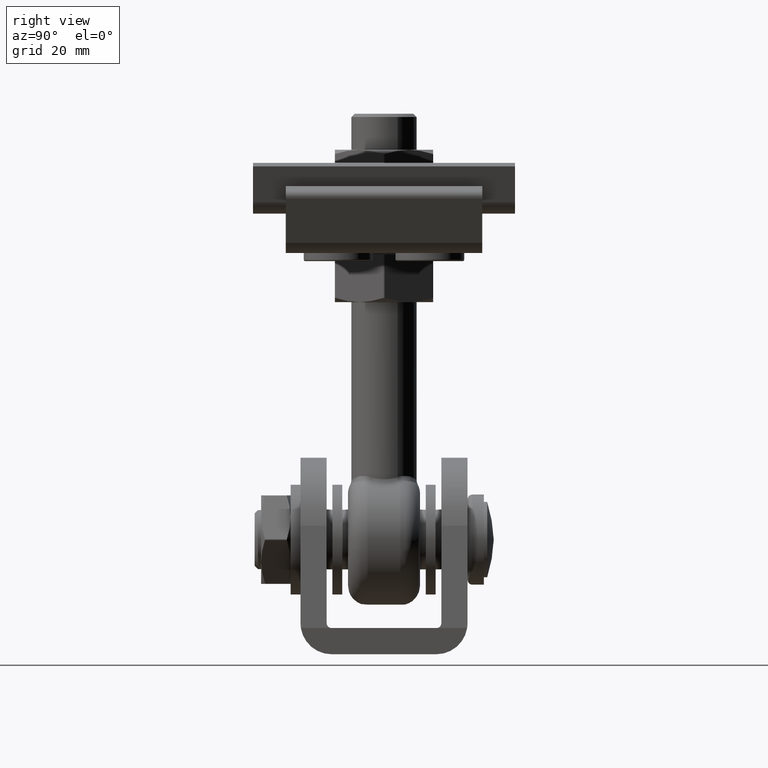
[diagram: clean part render]
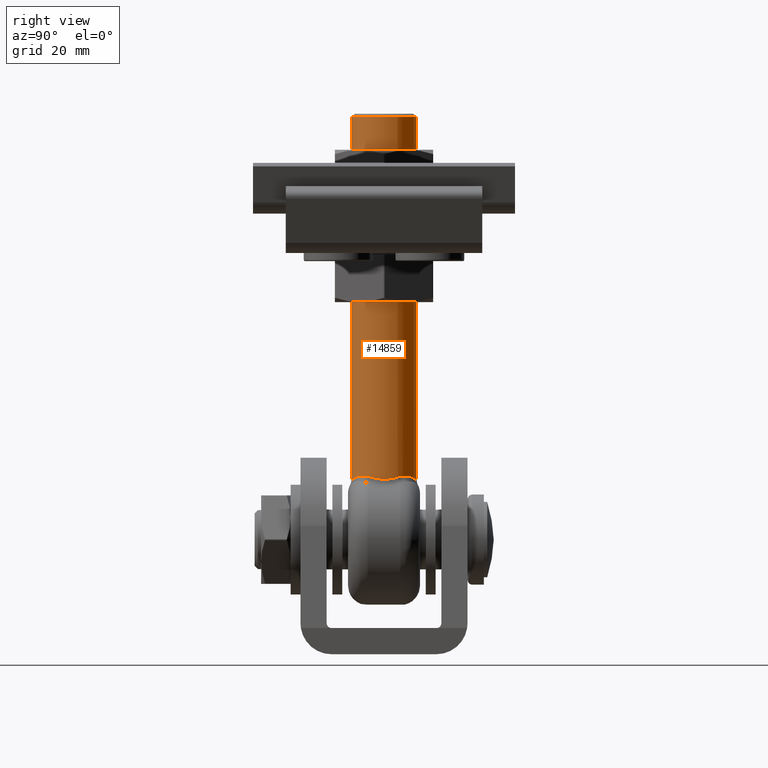
[diagram: same view with one face highlighted and labeled with its STEP entity id]
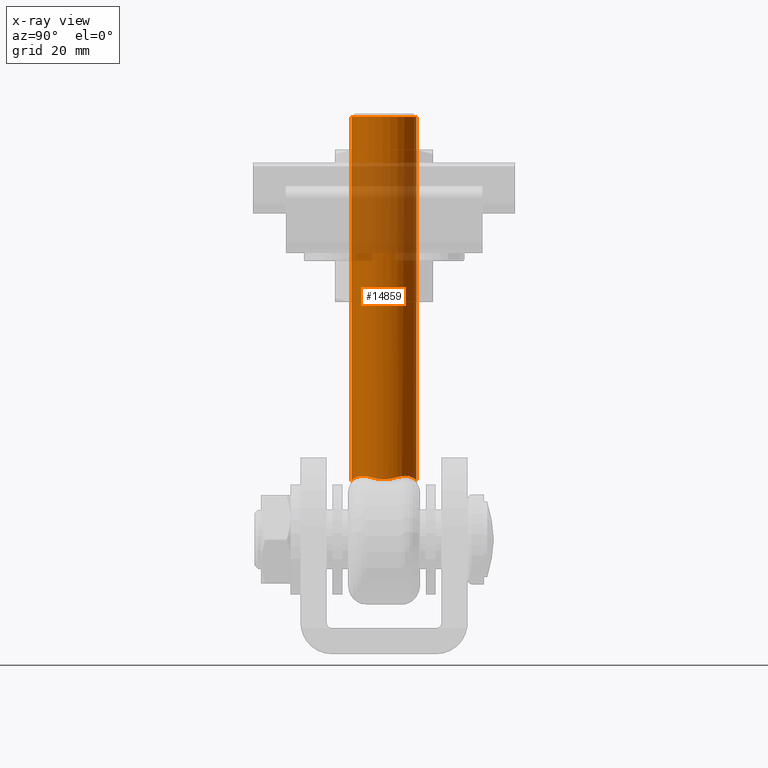
[diagram: x-ray of the same camera — body ghosted, the highlighted face saturated]
A machine part, right view. The second image highlights one B-rep face of the part: STEP entity #14859.
The next image is the same camera in x-ray: the body ghosted, the highlighted face saturated — about 27% of this face is hidden behind the body in this view.
In plain terms, the highlighted cylindrical surface (bore or boss wall) has radius 10 mm, axis along (0, 0, 1).
Its self-contained STEP definition (entity closure, byte-faithful):
#134 = CYLINDRICAL_SURFACE ( 'NONE', #4378, 10.00000000000000000 ) ;
#266 = CARTESIAN_POINT ( 'NONE',  ( 0.2511845623569835539, 9.999755645933785075, 17.87331644449183088 ) ) ;
#338 = CARTESIAN_POINT ( 'NONE',  ( -6.160153286120650939, 7.934779222513461683, 19.29763894920405676 ) ) ;
#409 = CARTESIAN_POINT ( 'NONE',  ( 3.714708355754479552, 9.296116692717417251, 18.60035468930307445 ) ) ;
#422 = DIRECTION ( 'NONE',  ( 1.000000000000000000, 0.000000000000000000, 0.000000000000000000 ) ) ;
#432 = CARTESIAN_POINT ( 'NONE',  ( -9.902369192380355400, -1.440246170654289948, 18.51489034012849544 ) ) ;
#476 = CARTESIAN_POINT ( 'NONE',  ( -7.700618228559071632, -6.384309629171570855, 19.46684797037674386 ) ) ;
#488 = CARTESIAN_POINT ( 'NONE',  ( -7.852292170679082695, 6.211375410633991123, 19.47188818097536966 ) ) ;
#508 = CARTESIAN_POINT ( 'NONE',  ( -9.384439080634725983, 3.525571142403825409, 18.90363433410399807 ) ) ;
#619 = CARTESIAN_POINT ( 'NONE',  ( 2.363575646118614593, -9.727900424251249234, 18.20762534760000761 ) ) ;
#1009 = ORIENTED_EDGE ( 'NONE', *, *, #9448, .T. ) ;
#1024 = CARTESIAN_POINT ( 'NONE',  ( 9.090593428863096293, -4.166666666666664298, 19.10497317454280619 ) ) ;
#1466 = CARTESIAN_POINT ( 'NONE',  ( 9.610531630833058614, 2.855730634923357769, 18.73623492436303906 ) ) ;
#1647 = ORIENTED_EDGE ( 'NONE', *, *, #19567, .T. ) ;
#1961 = CARTESIAN_POINT ( 'NONE',  ( -0.4725967919349461921, 10.00047393493213654, 17.87233728820014633 ) ) ;
#2022 = CARTESIAN_POINT ( 'NONE',  ( 6.160153286120652716, -7.934779222513456354, 19.29763894920404610 ) ) ;
#2130 = CARTESIAN_POINT ( 'NONE',  ( -9.090593428863094516, 4.166666666666665186, 19.10497317454280974 ) ) ;
#2155 = VERTEX_POINT ( 'NONE', #9070 ) ;
#2170 = CARTESIAN_POINT ( 'NONE',  ( -4.972900704951753958, -8.688680318867024965, 18.97999599202217524 ) ) ;
#2239 = EDGE_CURVE ( 'NONE', #9365, #14493, #13219, .T. ) ;
#2333 = CARTESIAN_POINT ( 'NONE',  ( -9.090593428863094516, -4.166666666666665186, 19.10497317454281330 ) ) ;
#2404 = CARTESIAN_POINT ( 'NONE',  ( 8.142686303425008987, -5.824684151182273339, 19.44992510401676356 ) ) ;
#2516 = EDGE_LOOP ( 'NONE', ( #1009 ) ) ;
#3015 = CARTESIAN_POINT ( 'NONE',  ( 9.841691593366174828, -1.808143960868277667, 18.56165943167942345 ) ) ;
#3594 = CARTESIAN_POINT ( 'NONE',  ( 8.144634896574812544, 5.807176287966261619, 19.43973765125108599 ) ) ;
#3652 = CARTESIAN_POINT ( 'NONE',  ( -7.222336926657016321, -6.933510762264830873, 19.45316611603928436 ) ) ;
#3663 = CARTESIAN_POINT ( 'NONE',  ( 4.562534591108402537, 8.910674600605211992, 18.85783881977134868 ) ) ;
#3738 = CARTESIAN_POINT ( 'NONE',  ( 1.218082143850894417, 9.928375864117215954, 17.96798904463858904 ) ) ;
#3798 = CARTESIAN_POINT ( 'NONE',  ( -8.894762409907890799, -4.593919508446287381, 19.23915378957208233 ) ) ;
#3813 = CARTESIAN_POINT ( 'NONE',  ( 8.894762409907889023, 4.593919508446287381, 19.23915378957206102 ) ) ;
#3880 = CARTESIAN_POINT ( 'NONE',  ( -4.562534591108402537, -8.910674600605208440, 18.85783881977134868 ) ) ;
#3893 = CARTESIAN_POINT ( 'NONE',  ( 0.9797708199843454535, 9.954855947939185157, 17.93339061655469990 ) ) ;
#4378 = AXIS2_PLACEMENT_3D ( 'NONE', #7221, #10556, #422 ) ;
#4415 = CARTESIAN_POINT ( 'NONE',  ( 10.00005662598660905, 0.3594230401292139998, 18.43904469254224310 ) ) ;
#4783 = CARTESIAN_POINT ( 'NONE',  ( 0.000000000000000000, 0.000000000000000000, 129.0000000000000000 ) ) ;
#4853 = CARTESIAN_POINT ( 'NONE',  ( -9.090593428863094516, -4.166666666666665186, 19.10497317454281330 ) ) ;
#5362 = CARTESIAN_POINT ( 'NONE',  ( -3.694724119173643739, 9.304006225545544240, 18.59421658741905148 ) ) ;
#5422 = CARTESIAN_POINT ( 'NONE',  ( -5.769393373033107508, -8.181503970052119712, 19.19265627968166044 ) ) ;
#5438 = CARTESIAN_POINT ( 'NONE',  ( -2.363575646118611928, 9.727900424251247458, 18.20762534760000406 ) ) ;
#5512 = CARTESIAN_POINT ( 'NONE',  ( -6.885880871741863807, 7.317332295469833880, 19.44210187310927296 ) ) ;
#5569 = CARTESIAN_POINT ( 'NONE',  ( -0.9797708199843468968, -9.954855947939185157, 17.93339061655469635 ) ) ;
#5582 = CARTESIAN_POINT ( 'NONE',  ( -8.663016131830728384, 5.018210557226519875, 19.33429418019336410 ) ) ;
#5680 = CARTESIAN_POINT ( 'NONE',  ( -10.00005662598660905, -0.3594230401292136667, 18.43904469254223599 ) ) ;
#5960 = CARTESIAN_POINT ( 'NONE',  ( -9.090593428863094516, 4.166666666666665186, 19.10497317454280974 ) ) ;
#6999 = ORIENTED_EDGE ( 'NONE', *, *, #2239, .T. ) ;
#7062 = CARTESIAN_POINT ( 'NONE',  ( -4.540832135588231289, 8.921679308190974211, 18.85131334155769167 ) ) ;
#7221 = CARTESIAN_POINT ( 'NONE',  ( 0.000000000000000000, 0.000000000000000000, -20.00200000000002021 ) ) ;
#7262 = CARTESIAN_POINT ( 'NONE',  ( 0.4725967919349461921, -10.00047393493214010, 17.87233728820014633 ) ) ;
#7293 = CARTESIAN_POINT ( 'NONE',  ( -9.901343154135075153, 1.447726966028151763, 18.51568222448904777 ) ) ;
#7341 = CARTESIAN_POINT ( 'NONE',  ( -1.218082143850895749, -9.928375864117214178, 17.96798904463858548 ) ) ;
#7372 = CARTESIAN_POINT ( 'NONE',  ( -9.980623476753576639, -0.7199858815027242454, 18.45428476059023382 ) ) ;
#8184 = CARTESIAN_POINT ( 'NONE',  ( 9.090593428863094516, 4.166666666666666075, 19.10497317454280974 ) ) ;
#8757 = CARTESIAN_POINT ( 'NONE',  ( 6.881368475755657244, 7.271533321133190952, 19.41290193214310733 ) ) ;
#8816 = CARTESIAN_POINT ( 'NONE',  ( 3.694724119173647736, -9.304006225545546016, 18.59421658741906214 ) ) ;
#8847 = CARTESIAN_POINT ( 'NONE',  ( -9.384537087737959027, -3.525357316148949316, 18.90356718103775080 ) ) ;
#8922 = ORIENTED_EDGE ( 'NONE', *, *, #20636, .T. ) ;
#8985 = CARTESIAN_POINT ( 'NONE',  ( 7.854684329889779271, 6.193731356444653002, 19.46345452949879018 ) ) ;
#9039 = CARTESIAN_POINT ( 'NONE',  ( -2.379167484183261738, -9.724063631633772076, 18.21172621114330781 ) ) ;
#9070 = CARTESIAN_POINT ( 'NONE',  ( 9.090593428863094516, 4.166666666666666075, 19.10497317454280974 ) ) ;
#9189 = CARTESIAN_POINT ( 'NONE',  ( 9.090593428863096293, -4.166666666666664298, 19.10497317454280619 ) ) ;
#9365 = VERTEX_POINT ( 'NONE', #4853 ) ;
#9448 = EDGE_CURVE ( 'NONE', #20112, #20112, #13250, .T. ) ;
#9736 = CARTESIAN_POINT ( 'NONE',  ( 9.384439080634725983, -3.525571142403822744, 18.90363433410399452 ) ) ;
#10388 = CARTESIAN_POINT ( 'NONE',  ( 1.922803202660565924, 9.824882364550360236, 18.09554228040887480 ) ) ;
#10441 = FACE_OUTER_BOUND ( 'NONE', #2516, .T. ) ;
#10462 = CARTESIAN_POINT ( 'NONE',  ( 6.156511364997026448, 7.894668881728766685, 19.28323784954771014 ) ) ;
#10542 = CARTESIAN_POINT ( 'NONE',  ( 4.972900704951752182, 8.688680318867024965, 18.97999599202216459 ) ) ;
#10556 = DIRECTION ( 'NONE',  ( -0.000000000000000000, -0.000000000000000000, 1.000000000000000000 ) ) ;
#10618 = CARTESIAN_POINT ( 'NONE',  ( 9.090593428863094516, 4.166666666666666075, 19.10497317454280974 ) ) ;
#10855 = CARTESIAN_POINT ( 'NONE',  ( -9.610531630833056838, -2.855730634923358213, 18.73623492436304261 ) ) ;
#11293 = AXIS2_PLACEMENT_3D ( 'NONE', #4783, #16551, #21875 ) ;
#11458 = ORIENTED_EDGE ( 'NONE', *, *, #16520, .T. ) ;
#11587 = CARTESIAN_POINT ( 'NONE',  ( 9.384537087737962580, 3.525357316148947984, 18.90356718103775080 ) ) ;
#12104 = CARTESIAN_POINT ( 'NONE',  ( 2.379167484183258185, 9.724063631633770299, 18.21172621114331136 ) ) ;
#12157 = CARTESIAN_POINT ( 'NONE',  ( 4.952919624299481072, -8.700324111770935787, 18.97432572575070608 ) ) ;
#12306 = CARTESIAN_POINT ( 'NONE',  ( -7.854684329889779271, -6.193731356444655667, 19.46345452949879373 ) ) ;
#12323 = CARTESIAN_POINT ( 'NONE',  ( -8.142686303425005434, 5.824684151182274228, 19.44992510401676000 ) ) ;
#12458 = CARTESIAN_POINT ( 'NONE',  ( 4.540832135588232177, -8.921679308190970659, 18.85131334155769167 ) ) ;
#12839 = CARTESIAN_POINT ( 'NONE',  ( -9.090593428863094516, 4.166666666666665186, 19.10497317454280974 ) ) ;
#12862 = CARTESIAN_POINT ( 'NONE',  ( 9.980397875495190974, -0.7239943859683557470, 18.45446219000211130 ) ) ;
#13151 = CARTESIAN_POINT ( 'NONE',  ( 9.609833829321912546, -2.857307435586065036, 18.73674476947732970 ) ) ;
#13219 = B_SPLINE_CURVE_WITH_KNOTS ( 'NONE', 3,
 ( #2333, #3798, #20726, #19185, #14001, #12306, #476, #3652, #13925, #20877, #5422, #2170, #3880, #18968, #14071, #9039, #15687, #7341, #5569, #17417, #20591, #7262, #20807, #17489, #619, #13842, #8816, #12458, #12157, #2022, #15551, #21178, #2404, #19477, #16070, #9189 ),
 .UNSPECIFIED., .F., .F.,
 ( 4, 2, 2, 2, 2, 2, 2, 2, 2, 2, 2, 2, 2, 2, 2, 2, 2, 4 ),
 ( 0.000000000000000000, 0.001440437644112431718, 0.002160656466168648336, 0.002880875288224864737, 0.004321312932337299274, 0.005761750576449732077, 0.007202188220562164879, 0.008642625864674600283, 0.01008306350878703309, 0.01080328233084325122, 0.01152350115289946936, 0.01296393879701190736, 0.01440437644112434190, 0.01584481408523677817, 0.01728525172934921791, 0.02016612701757409046, 0.02160656466168652326, 0.02304700230579895953 ),
 .UNSPECIFIED. ) ;
#13250 = CIRCLE ( 'NONE', #11293, 10.00000000000000000 ) ;
#13784 = CARTESIAN_POINT ( 'NONE',  ( -0.9498795253782694736, 9.966248688119691224, 17.92096459094775440 ) ) ;
#13842 = CARTESIAN_POINT ( 'NONE',  ( 3.260801918625495954, -9.464972654295465304, 18.45978413067846091 ) ) ;
#13925 = CARTESIAN_POINT ( 'NONE',  ( -6.881368475755657244, -7.271533321133190952, 19.41290193214311444 ) ) ;
#13957 = CARTESIAN_POINT ( 'NONE',  ( -9.842880911574541258, -1.801964006905271809, 18.56075269665124949 ) ) ;
#14001 = CARTESIAN_POINT ( 'NONE',  ( -8.144634896574812544, -5.807176287966261619, 19.43973765125108955 ) ) ;
#14071 = CARTESIAN_POINT ( 'NONE',  ( -3.274583437167494449, -9.460177310330172062, 18.46394782914145694 ) ) ;
#14493 = VERTEX_POINT ( 'NONE', #19907 ) ;
#14859 = ADVANCED_FACE ( 'NONE', ( #14928, #10441 ), #134, .T. ) ;
#14928 = FACE_OUTER_BOUND ( 'NONE', #15627, .T. ) ;
#14969 = CARTESIAN_POINT ( 'NONE',  ( 9.842880911574543035, 1.801964006905272031, 18.56075269665124239 ) ) ;
#15407 = CARTESIAN_POINT ( 'NONE',  ( 7.222336926657018097, 6.933510762264832650, 19.45316611603928436 ) ) ;
#15489 = CARTESIAN_POINT ( 'NONE',  ( -1.895945024130953671, 9.830248038155158241, 18.08925474111525133 ) ) ;
#15551 = CARTESIAN_POINT ( 'NONE',  ( 6.885880871741866471, -7.317332295469834769, 19.44210187310926941 ) ) ;
#15563 = CARTESIAN_POINT ( 'NONE',  ( 0.4948523645149506267, 9.990707129189953406, 17.88580186091686741 ) ) ;
#15619 = B_SPLINE_CURVE_WITH_KNOTS ( 'NONE', 3,
 ( #2130, #508, #17452, #19004, #7293, #20981, #19220, #5680, #7372, #432, #13957, #10855, #8847, #20691 ),
 .UNSPECIFIED., .F., .F.,
 ( 4, 2, 2, 2, 2, 2, 4 ),
 ( 0.000000000000000000, 0.002171185700893708912, 0.003256778551340563151, 0.004342371401787417824, 0.005427964252234272063, 0.006513557102681126303, 0.008684742803574837383 ),
 .UNSPECIFIED. ) ;
#15627 = EDGE_LOOP ( 'NONE', ( #11458, #1647, #8922, #6999 ) ) ;
#15633 = CARTESIAN_POINT ( 'NONE',  ( -3.260801918625491069, 9.464972654295465304, 18.45978413067846091 ) ) ;
#15687 = CARTESIAN_POINT ( 'NONE',  ( -1.922803202660567035, -9.824882364550363789, 18.09554228040887836 ) ) ;
#16070 = CARTESIAN_POINT ( 'NONE',  ( 8.894233125310551102, -4.595074271106113883, 19.23951644781270431 ) ) ;
#16520 = EDGE_CURVE ( 'NONE', #14493, #2155, #21736, .T. ) ;
#16551 = DIRECTION ( 'NONE',  ( -0.000000000000000000, -0.000000000000000000, -1.000000000000000000 ) ) ;
#17200 = CARTESIAN_POINT ( 'NONE',  ( 8.668304237301590831, 5.008768955111875698, 19.33228079883083694 ) ) ;
#17348 = CARTESIAN_POINT ( 'NONE',  ( 7.700618228559069856, 6.384309629171569966, 19.46684797037673675 ) ) ;
#17380 = B_SPLINE_CURVE_WITH_KNOTS ( 'NONE', 3,
 ( #10618, #3813, #17200, #20671, #3594, #8985, #17348, #15407, #8757, #10462, #20820, #10542, #3663, #409, #20534, #12104, #10388, #3738, #3893, #15563, #266, #1961, #13784, #15489, #5438, #15633, #5362, #7062, #18908, #338, #5512, #488, #12323, #5582, #17432, #5960 ),
 .UNSPECIFIED., .F., .F.,
 ( 4, 2, 2, 2, 2, 2, 2, 2, 2, 2, 2, 2, 2, 2, 2, 2, 2, 4 ),
 ( 0.000000000000000000, 0.001440437644112431718, 0.002160656466168647035, 0.002880875288224862135, 0.004321312932337294070, 0.005761750576449726005, 0.007202188220562157940, 0.008642625864674589875, 0.01008306350878702268, 0.01080328233084324255, 0.01152350115289945895, 0.01296393879701189696, 0.01440437644112433149, 0.01584481408523676776, 0.01728525172934920751, 0.02016612701757408005, 0.02160656466168651979, 0.02304700230579895953 ),
 .UNSPECIFIED. ) ;
#17417 = CARTESIAN_POINT ( 'NONE',  ( -0.4948523645149522365, -9.990707129189951630, 17.88580186091686741 ) ) ;
#17432 = CARTESIAN_POINT ( 'NONE',  ( -8.894233125310543997, 4.595074271106113883, 19.23951644781270787 ) ) ;
#17452 = CARTESIAN_POINT ( 'NONE',  ( -9.609833829321916099, 2.857307435586066369, 18.73674476947733325 ) ) ;
#17489 = CARTESIAN_POINT ( 'NONE',  ( 1.895945024130953449, -9.830248038155156465, 18.08925474111525489 ) ) ;
#18908 = CARTESIAN_POINT ( 'NONE',  ( -4.952919624299478407, 8.700324111770939339, 18.97432572575070253 ) ) ;
#18968 = CARTESIAN_POINT ( 'NONE',  ( -3.714708355754480440, -9.296116692717417251, 18.60035468930307800 ) ) ;
#19004 = CARTESIAN_POINT ( 'NONE',  ( -9.841691593366169499, 1.808143960868277444, 18.56165943167941279 ) ) ;
#19185 = CARTESIAN_POINT ( 'NONE',  ( -8.281464096265388264, -5.610184366069939976, 19.41948601650233996 ) ) ;
#19220 = CARTESIAN_POINT ( 'NONE',  ( -9.999943126885190381, 0.3625671024459205527, 18.43913332962400276 ) ) ;
#19237 = CARTESIAN_POINT ( 'NONE',  ( -10.00000000000000000, 0.000000000000000000, 129.0000000000000000 ) ) ;
#19477 = CARTESIAN_POINT ( 'NONE',  ( 8.663016131830731936, -5.018210557226518098, 19.33429418019336410 ) ) ;
#19567 = EDGE_CURVE ( 'NONE', #2155, #19842, #17380, .T. ) ;
#19658 = CARTESIAN_POINT ( 'NONE',  ( 9.999943126885190381, -0.3625671024459199976, 18.43913332962400276 ) ) ;
#19740 = CARTESIAN_POINT ( 'NONE',  ( 9.902369192380353624, 1.440246170654289948, 18.51489034012849189 ) ) ;
#19842 = VERTEX_POINT ( 'NONE', #12839 ) ;
#19907 = CARTESIAN_POINT ( 'NONE',  ( 9.090593428863096293, -4.166666666666664298, 19.10497317454280619 ) ) ;
#20112 = VERTEX_POINT ( 'NONE', #19237 ) ;
#20534 = CARTESIAN_POINT ( 'NONE',  ( 3.274583437167492672, 9.460177310330172062, 18.46394782914145694 ) ) ;
#20591 = CARTESIAN_POINT ( 'NONE',  ( -0.2511845623569839425, -9.999755645933786852, 17.87331644449183088 ) ) ;
#20636 = EDGE_CURVE ( 'NONE', #19842, #9365, #15619, .T. ) ;
#20671 = CARTESIAN_POINT ( 'NONE',  ( 8.281464096265386488, 5.610184366069936424, 19.41948601650232575 ) ) ;
#20691 = CARTESIAN_POINT ( 'NONE',  ( -9.090593428863094516, -4.166666666666665186, 19.10497317454281330 ) ) ;
#20726 = CARTESIAN_POINT ( 'NONE',  ( -8.668304237301592607, -5.008768955111876586, 19.33228079883084050 ) ) ;
#20807 = CARTESIAN_POINT ( 'NONE',  ( 0.9498795253782699177, -9.966248688119687671, 17.92096459094775796 ) ) ;
#20820 = CARTESIAN_POINT ( 'NONE',  ( 5.769393373033109285, 8.181503970052121488, 19.19265627968166044 ) ) ;
#20877 = CARTESIAN_POINT ( 'NONE',  ( -6.156511364997025559, -7.894668881728764909, 19.28323784954771725 ) ) ;
#20981 = CARTESIAN_POINT ( 'NONE',  ( -9.980397875495190974, 0.7239943859683569682, 18.45446219000211130 ) ) ;
#21178 = CARTESIAN_POINT ( 'NONE',  ( 7.852292170679082695, -6.211375410633987570, 19.47188818097536966 ) ) ;
#21282 = CARTESIAN_POINT ( 'NONE',  ( 9.901343154135076929, -1.447726966028151541, 18.51568222448904777 ) ) ;
#21359 = CARTESIAN_POINT ( 'NONE',  ( 9.980623476753574863, 0.7199858815027246894, 18.45428476059023382 ) ) ;
#21736 = B_SPLINE_CURVE_WITH_KNOTS ( 'NONE', 3,
 ( #1024, #9736, #13151, #3015, #21282, #12862, #19658, #4415, #21359, #19740, #14969, #1466, #11587, #8184 ),
 .UNSPECIFIED., .F., .F.,
 ( 4, 2, 2, 2, 2, 2, 4 ),
 ( 0.000000000000000000, 0.002171185700893709346, 0.003256778551340564019, 0.004342371401787418692, 0.005427964252234273798, 0.006513557102681128037, 0.008684742803574837383 ),
 .UNSPECIFIED. ) ;
#21875 = DIRECTION ( 'NONE',  ( -1.000000000000000000, 0.000000000000000000, 0.000000000000000000 ) ) ;